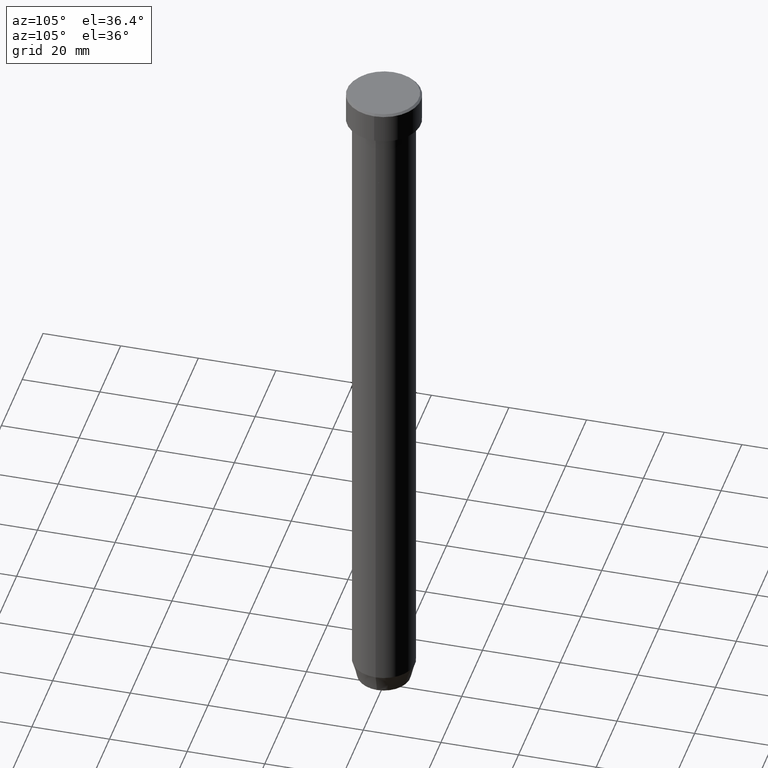
[diagram: clean part render]
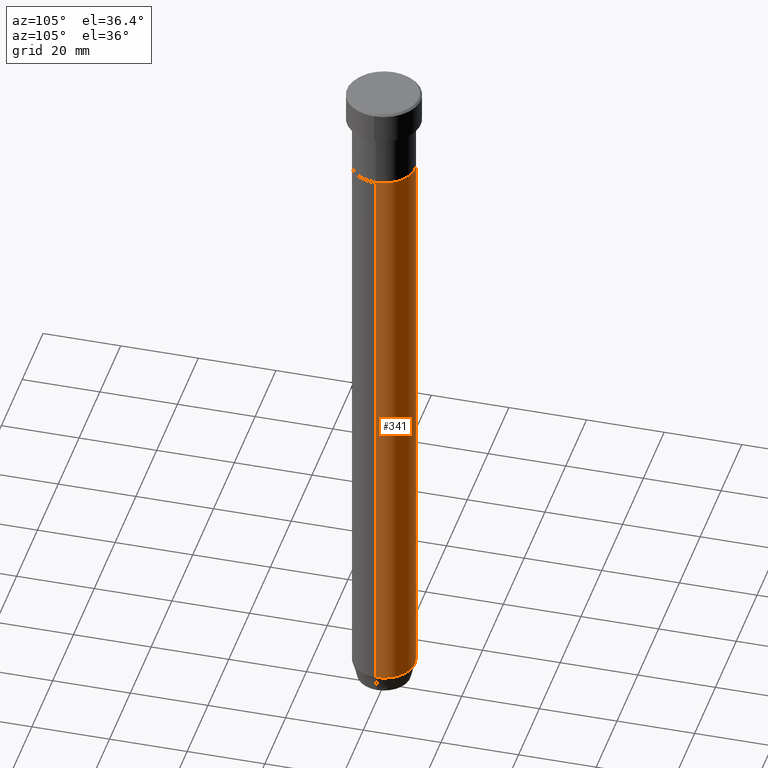
[diagram: same view with one face highlighted and labeled with its STEP entity id]
A machine part, auxiliary view. The second image highlights one B-rep face of the part: STEP entity #341.
In plain terms, the highlighted cylindrical surface (edge-blend (fillet) strip) has radius 8 mm, axis along (-0, -0, 1).
Its self-contained STEP definition (entity closure, byte-faithful):
#19 = FACE_OUTER_BOUND ( 'NONE', #238, .T. ) ;
#84 = VERTEX_POINT ( 'NONE', #289 ) ;
#87 = CARTESIAN_POINT ( 'NONE',  ( 8.000000000000000000, 0.000000000000000000, 0.000000000000000000 ) ) ;
#88 = CIRCLE ( 'NONE', #322, 8.000000000000000000 ) ;
#97 = DIRECTION ( 'NONE',  ( 1.000000000000000000, 0.000000000000000000, 0.000000000000000000 ) ) ;
#103 = EDGE_CURVE ( 'NONE', #380, #229, #552, .T. ) ;
#107 = CARTESIAN_POINT ( 'NONE',  ( -8.000000000000000000, 9.797174393178825657E-16, 0.000000000000000000 ) ) ;
#111 = CARTESIAN_POINT ( 'NONE',  ( -8.000000000000000000, 9.797174393178825657E-16, -22.00000000000000000 ) ) ;
#114 = DIRECTION ( 'NONE',  ( 1.000000000000000000, 0.000000000000000000, 0.000000000000000000 ) ) ;
#123 = ORIENTED_EDGE ( 'NONE', *, *, #103, .T. ) ;
#172 = CARTESIAN_POINT ( 'NONE',  ( -8.000000000000000000, 9.797174393178825657E-16, -175.0000000000000000 ) ) ;
#184 = EDGE_CURVE ( 'NONE', #84, #380, #88, .T. ) ;
#197 = DIRECTION ( 'NONE',  ( 1.000000000000000000, 0.000000000000000000, 0.000000000000000000 ) ) ;
#202 = CYLINDRICAL_SURFACE ( 'NONE', #469, 8.000000000000000000 ) ;
#213 = VECTOR ( 'NONE', #350, 1000.000000000000000 ) ;
#229 = VERTEX_POINT ( 'NONE', #111 ) ;
#238 = EDGE_LOOP ( 'NONE', ( #540, #123, #303, #444 ) ) ;
#240 = DIRECTION ( 'NONE',  ( -0.000000000000000000, -0.000000000000000000, 1.000000000000000000 ) ) ;
#263 = VERTEX_POINT ( 'NONE', #293 ) ;
#272 = CARTESIAN_POINT ( 'NONE',  ( 0.000000000000000000, 0.000000000000000000, -22.00000000000000000 ) ) ;
#289 = CARTESIAN_POINT ( 'NONE',  ( 8.000000000000000000, 0.000000000000000000, -175.0000000000000000 ) ) ;
#293 = CARTESIAN_POINT ( 'NONE',  ( 8.000000000000000000, 0.000000000000000000, -22.00000000000000000 ) ) ;
#303 = ORIENTED_EDGE ( 'NONE', *, *, #574, .F. ) ;
#322 = AXIS2_PLACEMENT_3D ( 'NONE', #359, #323, #97 ) ;
#323 = DIRECTION ( 'NONE',  ( -0.000000000000000000, -0.000000000000000000, 1.000000000000000000 ) ) ;
#324 = DIRECTION ( 'NONE',  ( -0.000000000000000000, -0.000000000000000000, 1.000000000000000000 ) ) ;
#337 = DIRECTION ( 'NONE',  ( -0.000000000000000000, -0.000000000000000000, 1.000000000000000000 ) ) ;
#341 = ADVANCED_FACE ( 'NONE', ( #19 ), #202, .T. ) ;
#342 = LINE ( 'NONE', #87, #213 ) ;
#350 = DIRECTION ( 'NONE',  ( -0.000000000000000000, -0.000000000000000000, 1.000000000000000000 ) ) ;
#359 = CARTESIAN_POINT ( 'NONE',  ( 0.000000000000000000, 0.000000000000000000, -175.0000000000000000 ) ) ;
#372 = CARTESIAN_POINT ( 'NONE',  ( 0.000000000000000000, 0.000000000000000000, 0.000000000000000000 ) ) ;
#373 = VECTOR ( 'NONE', #240, 1000.000000000000000 ) ;
#380 = VERTEX_POINT ( 'NONE', #172 ) ;
#395 = EDGE_CURVE ( 'NONE', #84, #263, #342, .T. ) ;
#412 = CIRCLE ( 'NONE', #512, 8.000000000000000000 ) ;
#444 = ORIENTED_EDGE ( 'NONE', *, *, #395, .F. ) ;
#469 = AXIS2_PLACEMENT_3D ( 'NONE', #372, #337, #114 ) ;
#512 = AXIS2_PLACEMENT_3D ( 'NONE', #272, #324, #197 ) ;
#540 = ORIENTED_EDGE ( 'NONE', *, *, #184, .T. ) ;
#552 = LINE ( 'NONE', #107, #373 ) ;
#574 = EDGE_CURVE ( 'NONE', #263, #229, #412, .T. ) ;